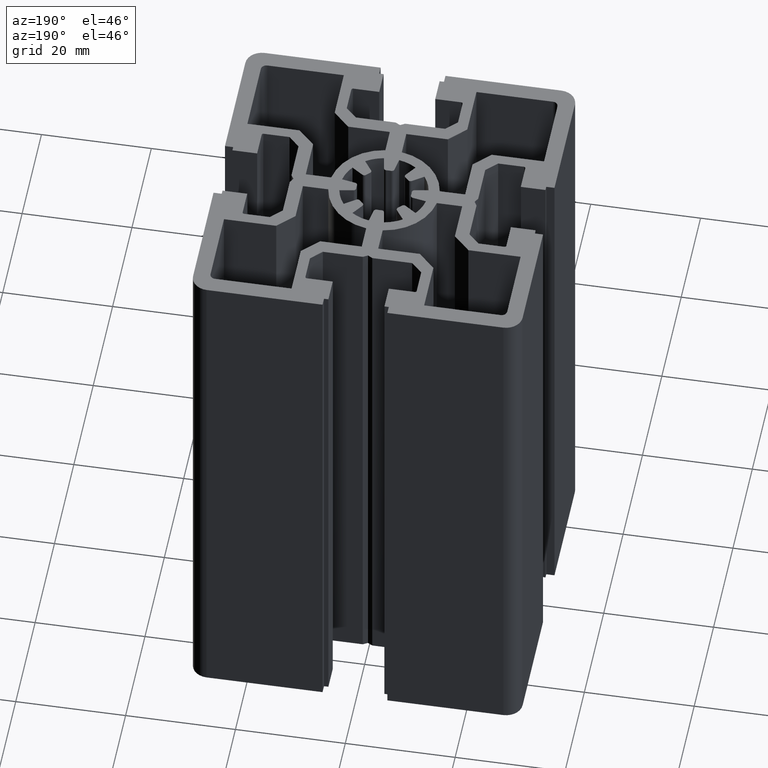
[diagram: clean part render]
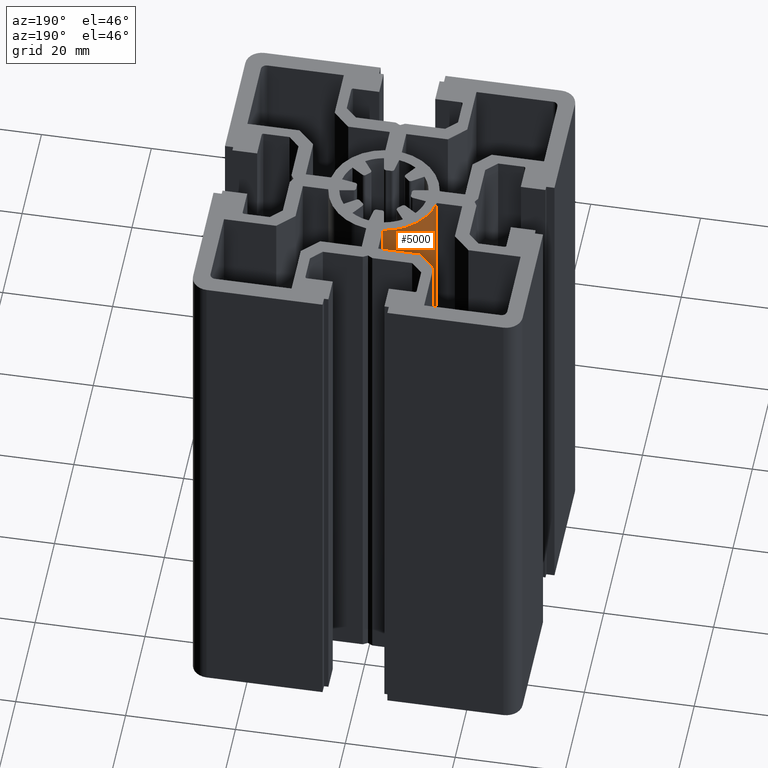
[diagram: same view with one face highlighted and labeled with its STEP entity id]
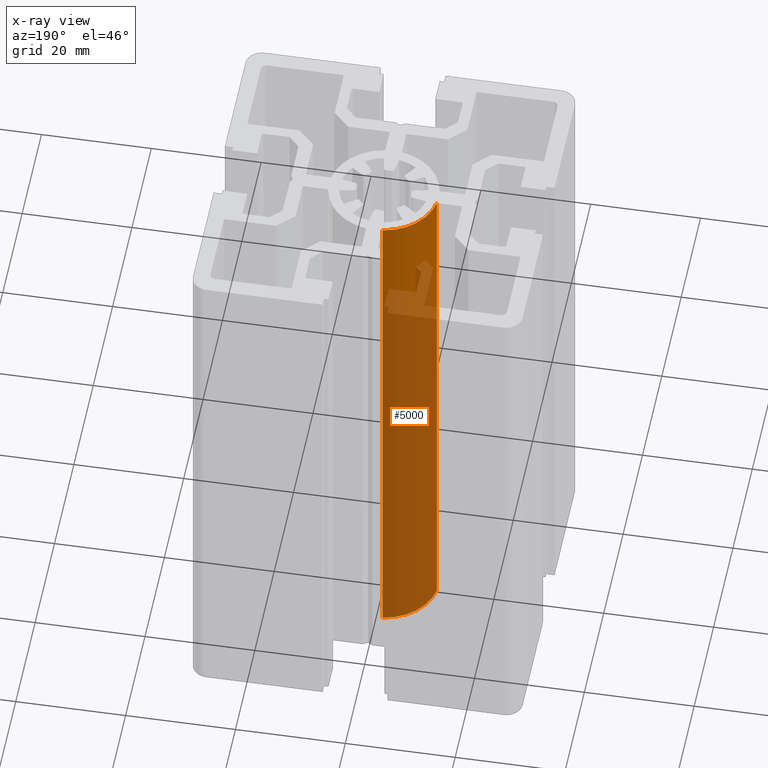
[diagram: x-ray of the same camera — body ghosted, the highlighted face saturated]
A machine part, auxiliary view. The second image highlights one B-rep face of the part: STEP entity #5000.
The next image is the same camera in x-ray: the body ghosted, the highlighted face saturated — about 81% of this face is hidden behind the body in this view.
In plain terms, the highlighted cylindrical surface (partial cylindrical patch) has radius 10 mm, axis along (-0, -0, -1).
Its self-contained STEP definition (entity closure, byte-faithful):
#40 = ORIENTED_EDGE ( 'NONE', *, *, #989, .F. ) ;
#373 = EDGE_CURVE ( 'NONE', #374, #414, #2411, .T. ) ;
#374 = VERTEX_POINT ( 'NONE', #2405 ) ;
#414 = VERTEX_POINT ( 'NONE', #2479 ) ;
#983 = VERTEX_POINT ( 'NONE', #3471 ) ;
#989 = EDGE_CURVE ( 'NONE', #983, #995, #3515, .T. ) ;
#995 = VERTEX_POINT ( 'NONE', #3473 ) ;
#2401 = DIRECTION ( 'NONE',  ( 1.000000000000000000, 0.0000000000000000000, 0.0000000000000000000 ) ) ;
#2402 = DIRECTION ( 'NONE',  ( -0.0000000000000000000, -0.0000000000000000000, -1.000000000000000000 ) ) ;
#2403 = CARTESIAN_POINT ( 'NONE',  ( -9.107298248878237200E-015, -1.127570259384924600E-014, 100.0000000000000000 ) ) ;
#2405 = CARTESIAN_POINT ( 'NONE',  ( -9.886860076496740000, 1.500000000000002000, 100.0000000000000000 ) ) ;
#2411 = CIRCLE ( 'NONE', #2419, 10.00000010861125000 ) ;
#2419 = AXIS2_PLACEMENT_3D ( 'NONE', #2403, #2402, #2401 ) ;
#2479 = CARTESIAN_POINT ( 'NONE',  ( -1.500000000000000000, 9.886860076496734700, 100.0000000000000000 ) ) ;
#3471 = CARTESIAN_POINT ( 'NONE',  ( -9.886860076496740000, 1.500000000000002000, 0.0000000000000000000 ) ) ;
#3473 = CARTESIAN_POINT ( 'NONE',  ( -1.500000000000000000, 9.886860076496734700, 0.0000000000000000000 ) ) ;
#3511 = DIRECTION ( 'NONE',  ( 1.000000000000000000, 0.0000000000000000000, 0.0000000000000000000 ) ) ;
#3512 = DIRECTION ( 'NONE',  ( -0.0000000000000000000, -0.0000000000000000000, -1.000000000000000000 ) ) ;
#3513 = CARTESIAN_POINT ( 'NONE',  ( -9.107298248878237200E-015, -1.127570259384924600E-014, 0.0000000000000000000 ) ) ;
#3514 = AXIS2_PLACEMENT_3D ( 'NONE', #3513, #3512, #3511 ) ;
#3515 = CIRCLE ( 'NONE', #3514, 10.00000010861125000 ) ;
#4105 = DIRECTION ( 'NONE',  ( -0.0000000000000000000, -0.0000000000000000000, -1.000000000000000000 ) ) ;
#4106 = LINE ( 'NONE', #4145, #4144 ) ;
#4113 = FACE_OUTER_BOUND ( 'NONE', #4890, .T. ) ;
#4115 = DIRECTION ( 'NONE',  ( -1.000000000000000000, 0.0000000000000000000, 0.0000000000000000000 ) ) ;
#4116 = LINE ( 'NONE', #4164, #4163 ) ;
#4127 = CARTESIAN_POINT ( 'NONE',  ( -9.107298248878237200E-015, -1.127570259384924600E-014, 100.0000000000000000 ) ) ;
#4128 = AXIS2_PLACEMENT_3D ( 'NONE', #4127, #4105, #4115 ) ;
#4135 = CYLINDRICAL_SURFACE ( 'NONE', #4128, 10.00000010861125000 ) ;
#4143 = DIRECTION ( 'NONE',  ( -0.0000000000000000000, -0.0000000000000000000, -1.000000000000000000 ) ) ;
#4144 = VECTOR ( 'NONE', #4143, 1000.000000000000000 ) ;
#4145 = CARTESIAN_POINT ( 'NONE',  ( -1.500000000000000000, 9.886860076496734700, 100.0000000000000000 ) ) ;
#4162 = DIRECTION ( 'NONE',  ( -0.0000000000000000000, -0.0000000000000000000, -1.000000000000000000 ) ) ;
#4163 = VECTOR ( 'NONE', #4162, 1000.000000000000000 ) ;
#4164 = CARTESIAN_POINT ( 'NONE',  ( -9.886860076496740000, 1.500000000000002000, 100.0000000000000000 ) ) ;
#4890 = EDGE_LOOP ( 'NONE', ( #40, #4997, #5023, #4996 ) ) ;
#4996 = ORIENTED_EDGE ( 'NONE', *, *, #5014, .T. ) ;
#4997 = ORIENTED_EDGE ( 'NONE', *, *, #5002, .F. ) ;
#5000 = ADVANCED_FACE ( 'NONE', ( #4113 ), #4135, .T. ) ;
#5002 = EDGE_CURVE ( 'NONE', #374, #983, #4116, .T. ) ;
#5014 = EDGE_CURVE ( 'NONE', #414, #995, #4106, .T. ) ;
#5023 = ORIENTED_EDGE ( 'NONE', *, *, #373, .T. ) ;